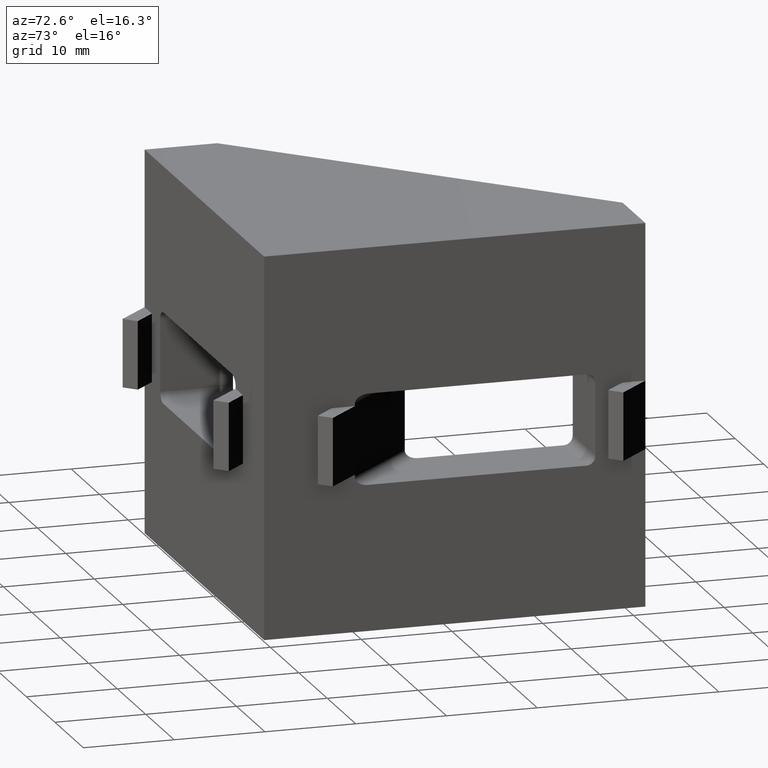
[diagram: clean part render]
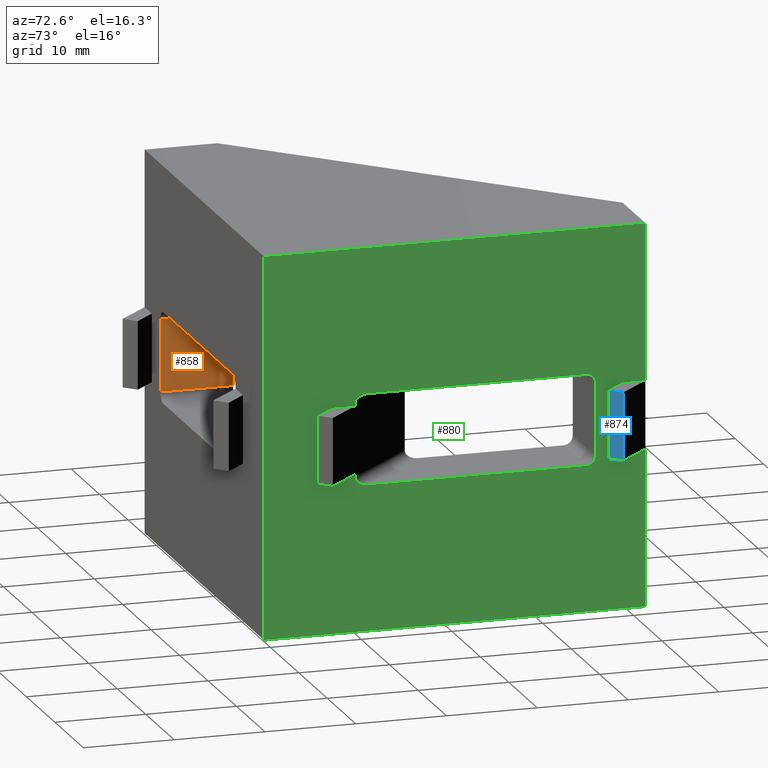
[diagram: same view with three faces highlighted in distinct colors, each labeled with its STEP entity id]
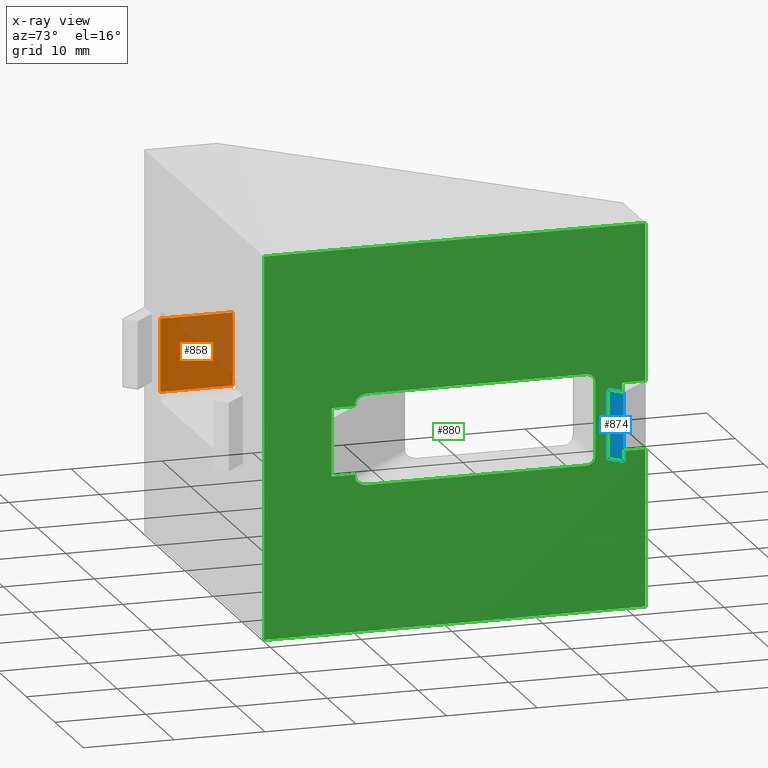
[diagram: x-ray of the same camera — body ghosted, the three highlighted faces saturated]
A machine part, auxiliary view with three faces highlighted in distinct colors.
The next image is the same camera in x-ray (body ghosted, the three faces saturated) — at least one of them is partly hidden behind the body in this view.
Their STEP definitions:

[orange] entity #858 — the highlighted planar face has unit normal (-1, -0, 0).
#32=PLANE('',#922);
#78=FACE_OUTER_BOUND('',#124,.T.);
#124=EDGE_LOOP('',(#641,#642,#643,#644));
#181=LINE('',#1258,#289);
#186=LINE('',#1275,#294);
#187=LINE('',#1278,#295);
#188=LINE('',#1279,#296);
#289=VECTOR('',#1021,8.);
#294=VECTOR('',#1038,8.);
#295=VECTOR('',#1043,8.);
#296=VECTOR('',#1044,8.);
#407=VERTEX_POINT('',#1251);
#410=VERTEX_POINT('',#1256);
#415=VERTEX_POINT('',#1272);
#416=VERTEX_POINT('',#1274);
#497=EDGE_CURVE('',#410,#407,#181,.T.);
#505=EDGE_CURVE('',#415,#416,#186,.T.);
#507=EDGE_CURVE('',#416,#410,#187,.T.);
#508=EDGE_CURVE('',#407,#415,#188,.T.);
#641=ORIENTED_EDGE('',*,*,#497,.F.);
#642=ORIENTED_EDGE('',*,*,#507,.F.);
#643=ORIENTED_EDGE('',*,*,#505,.F.);
#644=ORIENTED_EDGE('',*,*,#508,.F.);
#858=ADVANCED_FACE('',(#78),#32,.F.);
#922=AXIS2_PLACEMENT_3D('',#1277,#1041,#1042);
#1021=DIRECTION('',(-3.09829681290741E-16,1.,0.));
#1038=DIRECTION('',(3.09829681290741E-16,-1.,0.));
#1041=DIRECTION('center_axis',(-1.,-3.09829681290741E-16,0.));
#1042=DIRECTION('ref_axis',(0.,0.,-1.));
#1043=DIRECTION('',(0.,0.,1.));
#1044=DIRECTION('',(0.,0.,-1.));
#1251=CARTESIAN_POINT('',(-15.5,-13.,4.));
#1256=CARTESIAN_POINT('',(-15.5,-21.,4.));
#1258=CARTESIAN_POINT('',(-15.5,-13.,4.));
#1272=CARTESIAN_POINT('',(-15.5,-13.,-4.));
#1274=CARTESIAN_POINT('',(-15.5,-21.,-4.));
#1275=CARTESIAN_POINT('',(-15.5,-13.,-4.));
#1277=CARTESIAN_POINT('Origin',(-15.5,-13.,5.));
#1278=CARTESIAN_POINT('',(-15.5,-21.,2.5));
#1279=CARTESIAN_POINT('',(-15.5,-13.,2.5));

[blue] entity #874 — the highlighted planar face has unit normal (0.7071, -0.7071, 0).
#48=PLANE('',#938);
#94=FACE_OUTER_BOUND('',#140,.T.);
#140=EDGE_LOOP('',(#705,#706,#707,#708));
#226=LINE('',#1359,#334);
#229=LINE('',#1365,#337);
#230=LINE('',#1368,#338);
#231=LINE('',#1369,#339);
#334=VECTOR('',#1110,1.8);
#337=VECTOR('',#1115,7.5);
#338=VECTOR('',#1118,1.8);
#339=VECTOR('',#1119,7.5);
#441=VERTEX_POINT('',#1352);
#444=VERTEX_POINT('',#1357);
#446=VERTEX_POINT('',#1363);
#447=VERTEX_POINT('',#1367);
#546=EDGE_CURVE('',#444,#441,#226,.T.);
#549=EDGE_CURVE('',#444,#446,#229,.T.);
#550=EDGE_CURVE('',#447,#446,#230,.T.);
#551=EDGE_CURVE('',#441,#447,#231,.T.);
#705=ORIENTED_EDGE('',*,*,#549,.T.);
#706=ORIENTED_EDGE('',*,*,#550,.F.);
#707=ORIENTED_EDGE('',*,*,#551,.F.);
#708=ORIENTED_EDGE('',*,*,#546,.F.);
#874=ADVANCED_FACE('',(#94),#48,.T.);
#938=AXIS2_PLACEMENT_3D('',#1366,#1116,#1117);
#1110=DIRECTION('',(-0.707106781186547,-0.707106781186547,0.));
#1115=DIRECTION('',(0.,0.,1.));
#1116=DIRECTION('center_axis',(0.707106781186548,-0.707106781186548,0.));
#1117=DIRECTION('ref_axis',(0.707106781186548,0.707106781186548,0.));
#1118=DIRECTION('',(0.707106781186547,0.707106781186547,0.));
#1119=DIRECTION('',(0.,0.,1.));
#1352=CARTESIAN_POINT('',(23.2627416997969,16.1916738879315,-3.75));
#1357=CARTESIAN_POINT('',(24.5355339059327,17.4644660940673,-3.75));
#1359=CARTESIAN_POINT('',(23.2627416997969,16.1916738879315,-3.75));
#1363=CARTESIAN_POINT('',(24.5355339059327,17.4644660940673,3.75));
#1365=CARTESIAN_POINT('',(24.5355339059327,17.4644660940673,0.));
#1366=CARTESIAN_POINT('Origin',(23.2627416997969,16.1916738879315,0.));
#1367=CARTESIAN_POINT('',(23.2627416997969,16.1916738879315,3.75));
#1368=CARTESIAN_POINT('',(23.2627416997969,16.1916738879315,3.75));
#1369=CARTESIAN_POINT('',(23.2627416997969,16.1916738879315,0.));

[green] entity #880 — the highlighted planar face has unit normal (1, 0, 0).
#16=FACE_BOUND('',#148,.T.);
#20=CIRCLE('',#899,1.);
#22=CIRCLE('',#903,1.);
#54=PLANE('',#944);
#100=FACE_OUTER_BOUND('',#147,.T.);
#147=EDGE_LOOP('',(#753,#754,#755,#756,#757,#758,#759,#760));
#148=EDGE_LOOP('',(#761,#762,#763,#764,#765,#766,#767,#768,#769,#770,#771,
#772));
#165=LINE('',#1204,#273);
#169=LINE('',#1216,#277);
#173=LINE('',#1228,#281);
#212=LINE('',#1331,#320);
#220=LINE('',#1346,#328);
#221=LINE('',#1349,#329);
#224=LINE('',#1356,#332);
#233=LINE('',#1373,#341);
#234=LINE('',#1375,#342);
#237=LINE('',#1382,#345);
#243=LINE('',#1391,#351);
#244=LINE('',#1392,#352);
#246=LINE('',#1396,#354);
#247=LINE('',#1397,#355);
#248=LINE('',#1399,#356);
#249=LINE('',#1400,#357);
#273=VECTOR('',#969,24.0857864376269);
#277=VECTOR('',#981,8.);
#281=VECTOR('',#993,24.0857864376269);
#320=VECTOR('',#1088,2.54558441227158);
#328=VECTOR('',#1100,7.5);
#329=VECTOR('',#1103,2.54558441227158);
#332=VECTOR('',#1108,2.54558441227158);
#341=VECTOR('',#1123,7.5);
#342=VECTOR('',#1126,2.54558441227158);
#345=VECTOR('',#1131,42.);
#351=VECTOR('',#1141,0.250000000000007);
#352=VECTOR('',#1142,0.249999999999992);
#354=VECTOR('',#1146,17.25);
#355=VECTOR('',#1147,42.);
#356=VECTOR('',#1148,42.);
#357=VECTOR('',#1149,17.25);
#378=ELLIPSE('',#895,1.41421356237309,1.);
#379=ELLIPSE('',#906,1.41421356237309,1.);
#387=VERTEX_POINT('',#1194);
#388=VERTEX_POINT('',#1196);
#390=VERTEX_POINT('',#1202);
#392=VERTEX_POINT('',#1208);
#394=VERTEX_POINT('',#1214);
#396=VERTEX_POINT('',#1220);
#398=VERTEX_POINT('',#1226);
#399=VERTEX_POINT('',#1230);
#433=VERTEX_POINT('',#1329);
#434=VERTEX_POINT('',#1330);
#439=VERTEX_POINT('',#1344);
#440=VERTEX_POINT('',#1348);
#442=VERTEX_POINT('',#1353);
#443=VERTEX_POINT('',#1355);
#445=VERTEX_POINT('',#1361);
#448=VERTEX_POINT('',#1371);
#450=VERTEX_POINT('',#1379);
#451=VERTEX_POINT('',#1381);
#453=VERTEX_POINT('',#1395);
#454=VERTEX_POINT('',#1398);
#467=EDGE_CURVE('',#387,#388,#378,.T.);
#471=EDGE_CURVE('',#387,#390,#165,.T.);
#474=EDGE_CURVE('',#392,#390,#20,.T.);
#477=EDGE_CURVE('',#392,#394,#169,.T.);
#480=EDGE_CURVE('',#396,#394,#22,.T.);
#483=EDGE_CURVE('',#396,#398,#173,.T.);
#484=EDGE_CURVE('',#399,#398,#379,.T.);
#532=EDGE_CURVE('',#433,#434,#212,.T.);
#540=EDGE_CURVE('',#434,#439,#220,.T.);
#541=EDGE_CURVE('',#439,#440,#221,.T.);
#544=EDGE_CURVE('',#443,#442,#224,.T.);
#553=EDGE_CURVE('',#442,#448,#233,.T.);
#554=EDGE_CURVE('',#448,#445,#234,.T.);
#557=EDGE_CURVE('',#451,#450,#237,.T.);
#563=EDGE_CURVE('',#440,#388,#243,.T.);
#564=EDGE_CURVE('',#399,#433,#244,.T.);
#566=EDGE_CURVE('',#445,#453,#246,.T.);
#567=EDGE_CURVE('',#451,#453,#247,.T.);
#568=EDGE_CURVE('',#454,#450,#248,.T.);
#569=EDGE_CURVE('',#454,#443,#249,.T.);
#753=ORIENTED_EDGE('',*,*,#554,.T.);
#754=ORIENTED_EDGE('',*,*,#566,.T.);
#755=ORIENTED_EDGE('',*,*,#567,.F.);
#756=ORIENTED_EDGE('',*,*,#557,.T.);
#757=ORIENTED_EDGE('',*,*,#568,.F.);
#758=ORIENTED_EDGE('',*,*,#569,.T.);
#759=ORIENTED_EDGE('',*,*,#544,.T.);
#760=ORIENTED_EDGE('',*,*,#553,.T.);
#761=ORIENTED_EDGE('',*,*,#541,.T.);
#762=ORIENTED_EDGE('',*,*,#563,.T.);
#763=ORIENTED_EDGE('',*,*,#467,.F.);
#764=ORIENTED_EDGE('',*,*,#471,.T.);
#765=ORIENTED_EDGE('',*,*,#474,.F.);
#766=ORIENTED_EDGE('',*,*,#477,.T.);
#767=ORIENTED_EDGE('',*,*,#480,.F.);
#768=ORIENTED_EDGE('',*,*,#483,.T.);
#769=ORIENTED_EDGE('',*,*,#484,.F.);
#770=ORIENTED_EDGE('',*,*,#564,.T.);
#771=ORIENTED_EDGE('',*,*,#532,.T.);
#772=ORIENTED_EDGE('',*,*,#540,.T.);
#880=ADVANCED_FACE('',(#100,#16),#54,.T.);
#895=AXIS2_PLACEMENT_3D('',#1197,#962,#963);
#899=AXIS2_PLACEMENT_3D('',#1210,#975,#976);
#903=AXIS2_PLACEMENT_3D('',#1222,#987,#988);
#906=AXIS2_PLACEMENT_3D('',#1231,#996,#997);
#944=AXIS2_PLACEMENT_3D('',#1394,#1144,#1145);
#962=DIRECTION('center_axis',(1.,0.,0.));
#963=DIRECTION('ref_axis',(0.,-1.,1.42289629068217E-15));
#969=DIRECTION('',(0.,1.,0.));
#975=DIRECTION('center_axis',(1.,0.,0.));
#976=DIRECTION('ref_axis',(0.,0.707106781186549,0.707106781186546));
#981=DIRECTION('',(0.,0.,-1.));
#987=DIRECTION('center_axis',(1.,0.,0.));
#988=DIRECTION('ref_axis',(0.,0.707106781186546,-0.707106781186549));
#993=DIRECTION('',(0.,-1.,1.20024110770287E-15));
#996=DIRECTION('center_axis',(1.,0.,0.));
#997=DIRECTION('ref_axis',(0.,-1.,8.83177008009625E-16));
#1088=DIRECTION('',(0.,-1.,0.));
#1100=DIRECTION('',(0.,0.,1.));
#1103=DIRECTION('',(0.,1.,0.));
#1108=DIRECTION('',(0.,-1.,0.));
#1123=DIRECTION('',(0.,0.,1.));
#1126=DIRECTION('',(0.,1.,0.));
#1131=DIRECTION('',(0.,0.,-1.));
#1141=DIRECTION('',(0.,0.,1.));
#1142=DIRECTION('',(0.,0.,1.));
#1144=DIRECTION('center_axis',(1.,0.,0.));
#1145=DIRECTION('ref_axis',(0.,1.,0.));
#1146=DIRECTION('',(0.,0.,1.));
#1147=DIRECTION('',(0.,1.,0.));
#1148=DIRECTION('',(0.,-1.,0.));
#1149=DIRECTION('',(0.,0.,1.));
#1194=CARTESIAN_POINT('',(21.,-9.58578643762689,5.));
#1196=CARTESIAN_POINT('',(21.,-11.,4.00000000000001));
#1197=CARTESIAN_POINT('Origin',(21.,-9.58578643762689,4.00000000000001));
#1202=CARTESIAN_POINT('',(21.,14.5,5.));
#1204=CARTESIAN_POINT('',(21.,-13.4142135623731,5.));
#1208=CARTESIAN_POINT('',(21.,15.5,3.99999999999997));
#1210=CARTESIAN_POINT('Origin',(21.,14.5,3.99999999999997));
#1214=CARTESIAN_POINT('',(21.,15.5,-4.00000000000002));
#1216=CARTESIAN_POINT('',(21.,15.5,-2.50000000000001));
#1220=CARTESIAN_POINT('',(21.,14.5,-5.00000000000002));
#1222=CARTESIAN_POINT('Origin',(21.,14.5,-4.00000000000002));
#1226=CARTESIAN_POINT('',(21.,-9.58578643762689,-4.99999999999999));
#1228=CARTESIAN_POINT('',(21.,-12.,-4.99999999999999));
#1230=CARTESIAN_POINT('',(21.,-11.,-3.99999999999999));
#1231=CARTESIAN_POINT('Origin',(21.,-9.58578643762689,-3.99999999999999));
#1329=CARTESIAN_POINT('',(21.,-11.,-3.75));
#1330=CARTESIAN_POINT('',(21.,-13.5455844122716,-3.75));
#1331=CARTESIAN_POINT('',(21.,-17.2496255491019,-3.75));
#1344=CARTESIAN_POINT('',(21.,-13.5455844122716,3.75));
#1346=CARTESIAN_POINT('',(21.,-13.5455844122716,0.));
#1348=CARTESIAN_POINT('',(21.,-11.,3.75));
#1349=CARTESIAN_POINT('',(21.,-17.2496255491019,3.75));
#1353=CARTESIAN_POINT('',(21.,18.4544155877284,-3.75));
#1355=CARTESIAN_POINT('',(21.,21.,-3.75));
#1356=CARTESIAN_POINT('',(21.,-1.24962554910186,-3.75));
#1361=CARTESIAN_POINT('',(21.,21.,3.75));
#1371=CARTESIAN_POINT('',(21.,18.4544155877284,3.75));
#1373=CARTESIAN_POINT('',(21.,18.4544155877284,0.));
#1375=CARTESIAN_POINT('',(21.,-1.24962554910186,3.75));
#1379=CARTESIAN_POINT('',(21.,-21.,-21.));
#1381=CARTESIAN_POINT('',(21.,-21.,21.));
#1382=CARTESIAN_POINT('',(21.,-21.,0.));
#1391=CARTESIAN_POINT('',(21.,-11.,0.));
#1392=CARTESIAN_POINT('',(21.,-11.,0.));
#1394=CARTESIAN_POINT('Origin',(21.,-21.,0.));
#1395=CARTESIAN_POINT('',(21.,21.,21.));
#1396=CARTESIAN_POINT('',(21.,21.,0.));
#1397=CARTESIAN_POINT('',(21.,21.,21.));
#1398=CARTESIAN_POINT('',(21.,21.,-21.));
#1399=CARTESIAN_POINT('',(21.,21.,-21.));
#1400=CARTESIAN_POINT('',(21.,21.,0.));